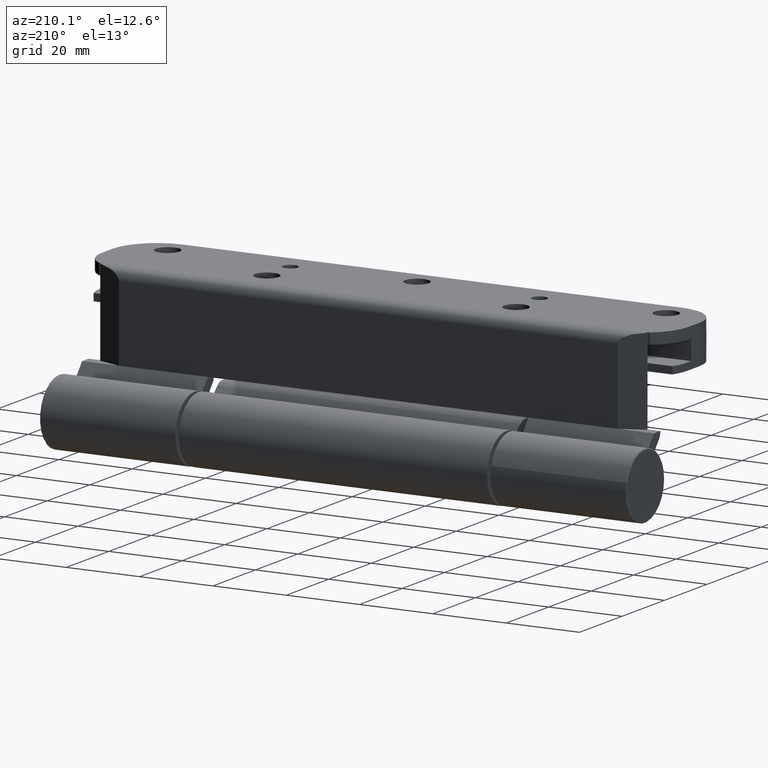
[diagram: clean part render]
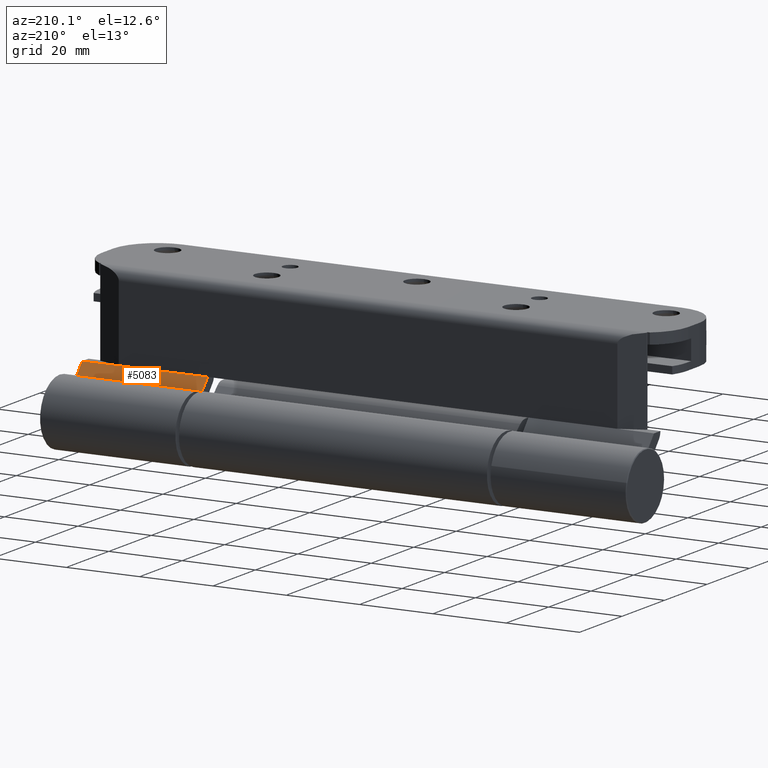
[diagram: same view with one face highlighted and labeled with its STEP entity id]
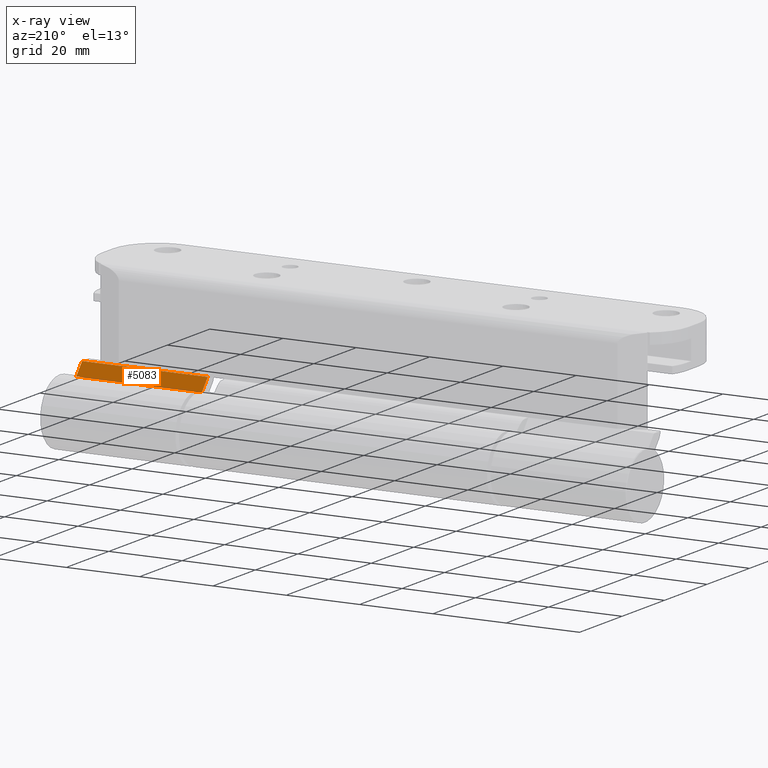
[diagram: x-ray of the same camera — body ghosted, the highlighted face saturated]
A machine part, auxiliary view. The second image highlights one B-rep face of the part: STEP entity #5083.
The next image is the same camera in x-ray: the body ghosted, the highlighted face saturated — about 0% of this face is hidden behind the body in this view.
In plain terms, the highlighted planar face has unit normal (0, 0.7575, 0.6528).
Its self-contained STEP definition (entity closure, byte-faithful):
#28 = CARTESIAN_POINT ( 'NONE',  ( -30.00000000000002842, -78.00000000000000000, 23.50000000000000000 ) ) ;
#336 = CARTESIAN_POINT ( 'NONE',  ( -30.00024250311931695, 80.00000000000000000, 23.50028137935642647 ) ) ;
#1076 = EDGE_CURVE ( 'NONE', #2722, #20865, #16191, .T. ) ;
#1639 = EDGE_CURVE ( 'NONE', #8444, #16929, #20030, .T. ) ;
#1786 = EDGE_LOOP ( 'NONE', ( #10620, #5950, #19485, #17207, #13652 ) ) ;
#2279 = DIRECTION ( 'NONE',  ( -2.016864910455080876E-32, -1.000000000000000000, 4.622231866529366047E-33 ) ) ;
#2713 = LINE ( 'NONE', #17124, #7419 ) ;
#2722 = VERTEX_POINT ( 'NONE', #4146 ) ;
#4130 = DIRECTION ( 'NONE',  ( -0.7574968807252608904, -6.008901426488175862E-32, -0.6528387823126776679 ) ) ;
#4146 = CARTESIAN_POINT ( 'NONE',  ( -30.00024250311930984, -43.75000000000000000, 23.50028137935642647 ) ) ;
#5083 = ADVANCED_FACE ( 'NONE', ( #8979 ), #9400, .T. ) ;
#5231 = DIRECTION ( 'NONE',  ( 0.6528387823126776679, 3.774822690998982272E-32, -0.7574968807252608904 ) ) ;
#5948 = CARTESIAN_POINT ( 'NONE',  ( -30.00000000000003553, 80.00000000000000000, 23.50000000000000000 ) ) ;
#5950 = ORIENTED_EDGE ( 'NONE', *, *, #18145, .F. ) ;
#7033 = VECTOR ( 'NONE', #21165, 1000.000000000000000 ) ;
#7200 = VERTEX_POINT ( 'NONE', #17502 ) ;
#7419 = VECTOR ( 'NONE', #2279, 1000.000000000000000 ) ;
#7733 = VECTOR ( 'NONE', #15065, 1000.000000000000000 ) ;
#8106 = VECTOR ( 'NONE', #5231, 1000.000000000000000 ) ;
#8270 = LINE ( 'NONE', #28, #8106 ) ;
#8444 = VERTEX_POINT ( 'NONE', #20778 ) ;
#8856 = DIRECTION ( 'NONE',  ( -2.016864910455080876E-32, -1.000000000000000000, 4.622231866529366047E-33 ) ) ;
#8979 = FACE_OUTER_BOUND ( 'NONE', #1786, .T. ) ;
#8988 = EDGE_CURVE ( 'NONE', #7200, #8444, #8270, .T. ) ;
#9400 = PLANE ( 'NONE',  #20256 ) ;
#10620 = ORIENTED_EDGE ( 'NONE', *, *, #8988, .F. ) ;
#10945 = DIRECTION ( 'NONE',  ( -0.6528387823126776679, -3.774822690998982272E-32, 0.7574968807252608904 ) ) ;
#12227 = EDGE_CURVE ( 'NONE', #2722, #16929, #20321, .T. ) ;
#13652 = ORIENTED_EDGE ( 'NONE', *, *, #1639, .F. ) ;
#15065 = DIRECTION ( 'NONE',  ( 2.016864910455080876E-32, 1.000000000000000000, -4.622231866529366047E-33 ) ) ;
#16191 = LINE ( 'NONE', #17602, #7033 ) ;
#16929 = VERTEX_POINT ( 'NONE', #21326 ) ;
#17124 = CARTESIAN_POINT ( 'NONE',  ( -32.76069628027381242, 80.00000000000000000, 26.70326990000363665 ) ) ;
#17207 = ORIENTED_EDGE ( 'NONE', *, *, #12227, .T. ) ;
#17502 = CARTESIAN_POINT ( 'NONE',  ( -32.76069628027385505, -78.00000000000000000, 26.70326990000363665 ) ) ;
#17602 = CARTESIAN_POINT ( 'NONE',  ( -30.00000000000003553, -43.75000000000000000, 23.50000000000000000 ) ) ;
#18145 = EDGE_CURVE ( 'NONE', #20865, #7200, #2713, .T. ) ;
#19485 = ORIENTED_EDGE ( 'NONE', *, *, #1076, .F. ) ;
#20030 = LINE ( 'NONE', #336, #7733 ) ;
#20089 = CARTESIAN_POINT ( 'NONE',  ( -30.00024250311931695, 80.00000000000000000, 23.50028137935642647 ) ) ;
#20256 = AXIS2_PLACEMENT_3D ( 'NONE', #5948, #4130, #10945 ) ;
#20321 = LINE ( 'NONE', #20089, #20573 ) ;
#20573 = VECTOR ( 'NONE', #8856, 1000.000000000000000 ) ;
#20778 = CARTESIAN_POINT ( 'NONE',  ( -30.00024250311929919, -78.00000000000000000, 23.50028137935642647 ) ) ;
#20865 = VERTEX_POINT ( 'NONE', #21167 ) ;
#21165 = DIRECTION ( 'NONE',  ( -0.6528387823126776679, -3.774822690998982272E-32, 0.7574968807252608904 ) ) ;
#21167 = CARTESIAN_POINT ( 'NONE',  ( -32.76069628027381242, -43.75000000000000000, 26.70326990000363665 ) ) ;
#21326 = CARTESIAN_POINT ( 'NONE',  ( -30.00024250311932761, -68.00000000000000000, 23.50028137935642647 ) ) ;